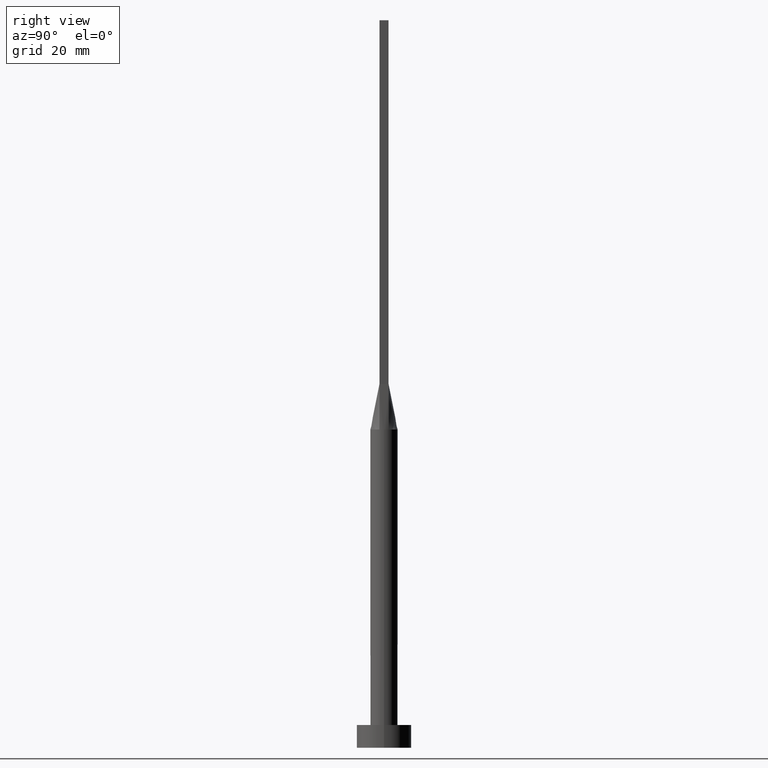
[diagram: clean part render]
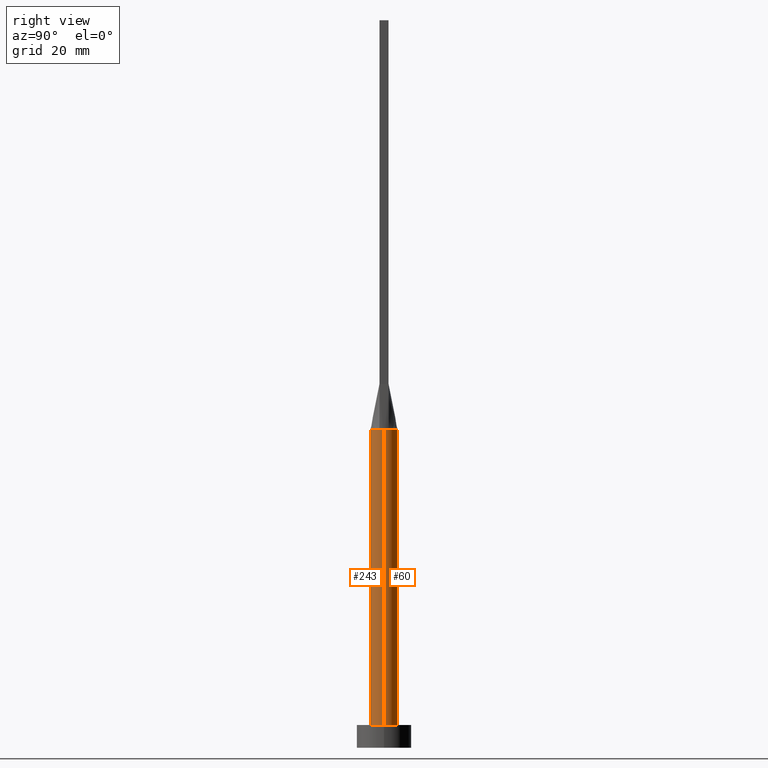
[diagram: same view with one multi-face feature highlighted, each face labeled with its STEP entity id]
A machine part, right view. The highlighted faces form ONE feature: a constant-radius fillet chain: 2 tangent blend faces with common blend radius 3 mm. The faces share edges in the B-rep.
Their STEP definitions:
[1] entity #60 (Cylinder):
#11 = CARTESIAN_POINT ( 'NONE',  ( 2.819412401233197141, 1.025240989080170806, 70.00000000000000000 ) ) ;
#12 = VERTEX_POINT ( 'NONE', #59 ) ;
#15 = DIRECTION ( 'NONE',  ( -0.000000000000000000, -0.000000000000000000, -1.000000000000000000 ) ) ;
#21 = CARTESIAN_POINT ( 'NONE',  ( 0.6998073349918605413, 2.936959335800557014, 69.99999999999997158 ) ) ;
#44 = VERTEX_POINT ( 'NONE', #336 ) ;
#59 = CARTESIAN_POINT ( 'NONE',  ( 3.000000000000000444, 3.673940397442060361E-16, 5.000000000000000000 ) ) ;
#60 = ADVANCED_FACE ( 'NONE', ( #250 ), #205, .T. ) ;
#61 = CARTESIAN_POINT ( 'NONE',  ( -2.115507543051069916, 2.149870311632977593, 69.99999999999998579 ) ) ;
#76 = CARTESIAN_POINT ( 'NONE',  ( -3.000000000000000444, 0.000000000000000000, 5.000000000000000000 ) ) ;
#83 = VERTEX_POINT ( 'NONE', #548 ) ;
#97 = CIRCLE ( 'NONE', #298, 3.000000000000000444 ) ;
#99 = CARTESIAN_POINT ( 'NONE',  ( -2.625980160873452096, 1.476334031700886396, 69.99999999999998579 ) ) ;
#106 = CARTESIAN_POINT ( 'NONE',  ( 1.338960936578149630, 2.706038443291637563, 70.00000000000000000 ) ) ;
#112 = AXIS2_PLACEMENT_3D ( 'NONE', #323, #510, #149 ) ;
#116 = DIRECTION ( 'NONE',  ( 1.000000000000000000, 0.000000000000000000, 0.000000000000000000 ) ) ;
#121 = CIRCLE ( 'NONE', #314, 3.000000000000000444 ) ;
#123 = EDGE_CURVE ( 'NONE', #83, #450, #544, .T. ) ;
#149 = DIRECTION ( 'NONE',  ( 1.000000000000000000, 0.000000000000000000, 0.000000000000000000 ) ) ;
#154 = CARTESIAN_POINT ( 'NONE',  ( -0.6998073349918608743, 2.936959335800557014, 70.00000000000000000 ) ) ;
#165 = CARTESIAN_POINT ( 'NONE',  ( 0.000000000000000000, 0.000000000000000000, 5.000000000000000000 ) ) ;
#176 = EDGE_LOOP ( 'NONE', ( #180, #327, #457, #449, #264, #300 ) ) ;
#180 = ORIENTED_EDGE ( 'NONE', *, *, #416, .F. ) ;
#191 = CARTESIAN_POINT ( 'NONE',  ( -0.3502136323054376721, 2.999999999999999112, 70.00000000000001421 ) ) ;
#205 = CYLINDRICAL_SURFACE ( 'NONE', #432, 3.000000000000000444 ) ;
#213 = CARTESIAN_POINT ( 'NONE',  ( -3.000000000000000444, 0.000000000000000000, 70.00000000000000000 ) ) ;
#234 = CARTESIAN_POINT ( 'NONE',  ( 2.739088299662392867, 1.246032108968142538, 70.00000000000002842 ) ) ;
#236 = EDGE_CURVE ( 'NONE', #447, #83, #333, .T. ) ;
#240 = CARTESIAN_POINT ( 'NONE',  ( 2.314486317179579977, 1.928337902455807384, 70.00000000000002842 ) ) ;
#245 = VECTOR ( 'NONE', #385, 1000.000000000000000 ) ;
#247 = DIRECTION ( 'NONE',  ( -0.000000000000000000, -0.000000000000000000, -1.000000000000000000 ) ) ;
#250 = FACE_OUTER_BOUND ( 'NONE', #176, .T. ) ;
#264 = ORIENTED_EDGE ( 'NONE', *, *, #236, .F. ) ;
#266 = B_SPLINE_CURVE_WITH_KNOTS ( 'NONE', 3,
 ( #422, #234, #375, #240, #409, #415, #106, #21, #505, #191, #154, #366, #556, #61, #418, #99, #325, #513 ),
 .UNSPECIFIED., .F., .F.,
 ( 4, 2, 2, 2, 2, 2, 2, 2, 4 ),
 ( 0.000000000000000000, 0.1249999999999998890, 0.2499999999999997780, 0.3749999999999997780, 0.4999999999999997780, 0.6249999999999997780, 0.7499999999999997780, 0.8749999999999998890, 1.000000000000000000 ),
 .UNSPECIFIED. ) ;
#278 = CARTESIAN_POINT ( 'NONE',  ( 3.000000000000000444, 3.673940397442060361E-16, 70.00000000000000000 ) ) ;
#298 = AXIS2_PLACEMENT_3D ( 'NONE', #433, #437, #484 ) ;
#300 = ORIENTED_EDGE ( 'NONE', *, *, #401, .F. ) ;
#303 = DIRECTION ( 'NONE',  ( 0.000000000000000000, 0.000000000000000000, 1.000000000000000000 ) ) ;
#314 = AXIS2_PLACEMENT_3D ( 'NONE', #165, #303, #116 ) ;
#323 = CARTESIAN_POINT ( 'NONE',  ( 0.000000000000000000, 0.000000000000000000, 70.00000000000000000 ) ) ;
#325 = CARTESIAN_POINT ( 'NONE',  ( -2.739088299662392423, 1.246032108968142316, 70.00000000000000000 ) ) ;
#327 = ORIENTED_EDGE ( 'NONE', *, *, #376, .T. ) ;
#333 = CIRCLE ( 'NONE', #112, 3.000000000000000444 ) ;
#336 = CARTESIAN_POINT ( 'NONE',  ( 3.000000000000000444, 7.514166843208536743E-18, 70.00000000000000000 ) ) ;
#366 = CARTESIAN_POINT ( 'NONE',  ( -1.338960936578149408, 2.706038443291637119, 69.99999999999998579 ) ) ;
#375 = CARTESIAN_POINT ( 'NONE',  ( 2.625980160873452540, 1.476334031700886618, 70.00000000000000000 ) ) ;
#376 = EDGE_CURVE ( 'NONE', #44, #12, #405, .T. ) ;
#378 = CARTESIAN_POINT ( 'NONE',  ( 0.000000000000000000, 0.000000000000000000, 70.00000000000000000 ) ) ;
#385 = DIRECTION ( 'NONE',  ( -0.000000000000000000, -0.000000000000000000, -1.000000000000000000 ) ) ;
#401 = EDGE_CURVE ( 'NONE', #522, #447, #266, .T. ) ;
#405 = LINE ( 'NONE', #278, #550 ) ;
#409 = CARTESIAN_POINT ( 'NONE',  ( 2.115507543051069916, 2.149870311632976705, 70.00000000000001421 ) ) ;
#415 = CARTESIAN_POINT ( 'NONE',  ( 1.627925520694712080, 2.539128397820340943, 69.99999999999998579 ) ) ;
#416 = EDGE_CURVE ( 'NONE', #44, #522, #97, .T. ) ;
#418 = CARTESIAN_POINT ( 'NONE',  ( -2.314486317179579977, 1.928337902455808051, 70.00000000000000000 ) ) ;
#422 = CARTESIAN_POINT ( 'NONE',  ( 2.819412401233197141, 1.025240989080170806, 70.00000000000000000 ) ) ;
#427 = DIRECTION ( 'NONE',  ( -1.000000000000000000, 0.000000000000000000, 0.000000000000000000 ) ) ;
#432 = AXIS2_PLACEMENT_3D ( 'NONE', #378, #247, #427 ) ;
#433 = CARTESIAN_POINT ( 'NONE',  ( 0.000000000000000000, 0.000000000000000000, 70.00000000000000000 ) ) ;
#435 = EDGE_CURVE ( 'NONE', #12, #450, #121, .T. ) ;
#437 = DIRECTION ( 'NONE',  ( 0.000000000000000000, 0.000000000000000000, 1.000000000000000000 ) ) ;
#447 = VERTEX_POINT ( 'NONE', #526 ) ;
#449 = ORIENTED_EDGE ( 'NONE', *, *, #123, .F. ) ;
#450 = VERTEX_POINT ( 'NONE', #76 ) ;
#457 = ORIENTED_EDGE ( 'NONE', *, *, #435, .T. ) ;
#484 = DIRECTION ( 'NONE',  ( 1.000000000000000000, 0.000000000000000000, 0.000000000000000000 ) ) ;
#505 = CARTESIAN_POINT ( 'NONE',  ( 0.3502136323054376721, 3.000000000000000444, 70.00000000000000000 ) ) ;
#510 = DIRECTION ( 'NONE',  ( 0.000000000000000000, 0.000000000000000000, 1.000000000000000000 ) ) ;
#513 = CARTESIAN_POINT ( 'NONE',  ( -2.819429393986302657, 1.025247261300842760, 70.00000000000000000 ) ) ;
#522 = VERTEX_POINT ( 'NONE', #11 ) ;
#526 = CARTESIAN_POINT ( 'NONE',  ( -2.819429393986302657, 1.025247261300842760, 70.00000000000000000 ) ) ;
#544 = LINE ( 'NONE', #213, #245 ) ;
#548 = CARTESIAN_POINT ( 'NONE',  ( -3.000000000000000444, -1.370010780910363192E-16, 70.00000000000000000 ) ) ;
#550 = VECTOR ( 'NONE', #15, 1000.000000000000000 ) ;
#556 = CARTESIAN_POINT ( 'NONE',  ( -1.627925520694712747, 2.539128397820341831, 70.00000000000000000 ) ) ;
[2] entity #243 (Cylinder):
#12 = VERTEX_POINT ( 'NONE', #59 ) ;
#15 = DIRECTION ( 'NONE',  ( -0.000000000000000000, -0.000000000000000000, -1.000000000000000000 ) ) ;
#18 = EDGE_CURVE ( 'NONE', #450, #12, #317, .T. ) ;
#23 = CARTESIAN_POINT ( 'NONE',  ( 0.000000000000000000, 0.000000000000000000, 70.00000000000000000 ) ) ;
#44 = VERTEX_POINT ( 'NONE', #336 ) ;
#48 = CIRCLE ( 'NONE', #387, 3.000000000000000444 ) ;
#59 = CARTESIAN_POINT ( 'NONE',  ( 3.000000000000000444, 3.673940397442060361E-16, 5.000000000000000000 ) ) ;
#62 = DIRECTION ( 'NONE',  ( 0.000000000000000000, 0.000000000000000000, 1.000000000000000000 ) ) ;
#65 = DIRECTION ( 'NONE',  ( 1.000000000000000000, 0.000000000000000000, 0.000000000000000000 ) ) ;
#76 = CARTESIAN_POINT ( 'NONE',  ( -3.000000000000000444, 0.000000000000000000, 5.000000000000000000 ) ) ;
#77 = CARTESIAN_POINT ( 'NONE',  ( 0.000000000000000000, 0.000000000000000000, 5.000000000000000000 ) ) ;
#78 = ORIENTED_EDGE ( 'NONE', *, *, #376, .F. ) ;
#83 = VERTEX_POINT ( 'NONE', #548 ) ;
#90 = VERTEX_POINT ( 'NONE', #411 ) ;
#102 = FACE_OUTER_BOUND ( 'NONE', #307, .T. ) ;
#104 = EDGE_CURVE ( 'NONE', #90, #187, #48, .T. ) ;
#123 = EDGE_CURVE ( 'NONE', #83, #450, #544, .T. ) ;
#126 = ORIENTED_EDGE ( 'NONE', *, *, #18, .T. ) ;
#132 = ORIENTED_EDGE ( 'NONE', *, *, #104, .F. ) ;
#150 = AXIS2_PLACEMENT_3D ( 'NONE', #23, #516, #512 ) ;
#167 = DIRECTION ( 'NONE',  ( 0.000000000000000000, 0.000000000000000000, 1.000000000000000000 ) ) ;
#186 = AXIS2_PLACEMENT_3D ( 'NONE', #346, #535, #533 ) ;
#187 = VERTEX_POINT ( 'NONE', #408 ) ;
#213 = CARTESIAN_POINT ( 'NONE',  ( -3.000000000000000444, 0.000000000000000000, 70.00000000000000000 ) ) ;
#214 = AXIS2_PLACEMENT_3D ( 'NONE', #477, #62, #419 ) ;
#239 = CYLINDRICAL_SURFACE ( 'NONE', #150, 3.000000000000000444 ) ;
#243 = ADVANCED_FACE ( 'NONE', ( #102 ), #239, .T. ) ;
#245 = VECTOR ( 'NONE', #385, 1000.000000000000000 ) ;
#278 = CARTESIAN_POINT ( 'NONE',  ( 3.000000000000000444, 3.673940397442060361E-16, 70.00000000000000000 ) ) ;
#289 = DIRECTION ( 'NONE',  ( 0.000000000000000000, 0.000000000000000000, 1.000000000000000000 ) ) ;
#307 = EDGE_LOOP ( 'NONE', ( #78, #348, #132, #578, #538, #126 ) ) ;
#308 = AXIS2_PLACEMENT_3D ( 'NONE', #77, #289, #475 ) ;
#317 = CIRCLE ( 'NONE', #308, 3.000000000000000444 ) ;
#321 = EDGE_CURVE ( 'NONE', #83, #90, #370, .T. ) ;
#336 = CARTESIAN_POINT ( 'NONE',  ( 3.000000000000000444, 7.514166843208536743E-18, 70.00000000000000000 ) ) ;
#346 = CARTESIAN_POINT ( 'NONE',  ( 0.000000000000000000, 0.000000000000000000, 70.00000000000000000 ) ) ;
#348 = ORIENTED_EDGE ( 'NONE', *, *, #561, .F. ) ;
#370 = CIRCLE ( 'NONE', #214, 3.000000000000000444 ) ;
#376 = EDGE_CURVE ( 'NONE', #44, #12, #405, .T. ) ;
#385 = DIRECTION ( 'NONE',  ( -0.000000000000000000, -0.000000000000000000, -1.000000000000000000 ) ) ;
#387 = AXIS2_PLACEMENT_3D ( 'NONE', #569, #167, #65 ) ;
#405 = LINE ( 'NONE', #278, #550 ) ;
#408 = CARTESIAN_POINT ( 'NONE',  ( 2.819430526142641558, -1.025247683279450817, 70.00000000000000000 ) ) ;
#411 = CARTESIAN_POINT ( 'NONE',  ( -2.819413526938078007, -1.025241406939941369, 70.00000000000000000 ) ) ;
#419 = DIRECTION ( 'NONE',  ( 1.000000000000000000, 0.000000000000000000, 0.000000000000000000 ) ) ;
#442 = CIRCLE ( 'NONE', #186, 3.000000000000000444 ) ;
#450 = VERTEX_POINT ( 'NONE', #76 ) ;
#475 = DIRECTION ( 'NONE',  ( 1.000000000000000000, 0.000000000000000000, 0.000000000000000000 ) ) ;
#477 = CARTESIAN_POINT ( 'NONE',  ( 0.000000000000000000, 0.000000000000000000, 70.00000000000000000 ) ) ;
#512 = DIRECTION ( 'NONE',  ( -1.000000000000000000, 0.000000000000000000, 0.000000000000000000 ) ) ;
#516 = DIRECTION ( 'NONE',  ( -0.000000000000000000, -0.000000000000000000, -1.000000000000000000 ) ) ;
#533 = DIRECTION ( 'NONE',  ( 1.000000000000000000, 8.881784197001252323E-16, 0.000000000000000000 ) ) ;
#535 = DIRECTION ( 'NONE',  ( 0.000000000000000000, 0.000000000000000000, 1.000000000000000000 ) ) ;
#538 = ORIENTED_EDGE ( 'NONE', *, *, #123, .T. ) ;
#544 = LINE ( 'NONE', #213, #245 ) ;
#548 = CARTESIAN_POINT ( 'NONE',  ( -3.000000000000000444, -1.370010780910363192E-16, 70.00000000000000000 ) ) ;
#550 = VECTOR ( 'NONE', #15, 1000.000000000000000 ) ;
#561 = EDGE_CURVE ( 'NONE', #187, #44, #442, .T. ) ;
#569 = CARTESIAN_POINT ( 'NONE',  ( 0.000000000000000000, 0.000000000000000000, 70.00000000000000000 ) ) ;
#578 = ORIENTED_EDGE ( 'NONE', *, *, #321, .F. ) ;